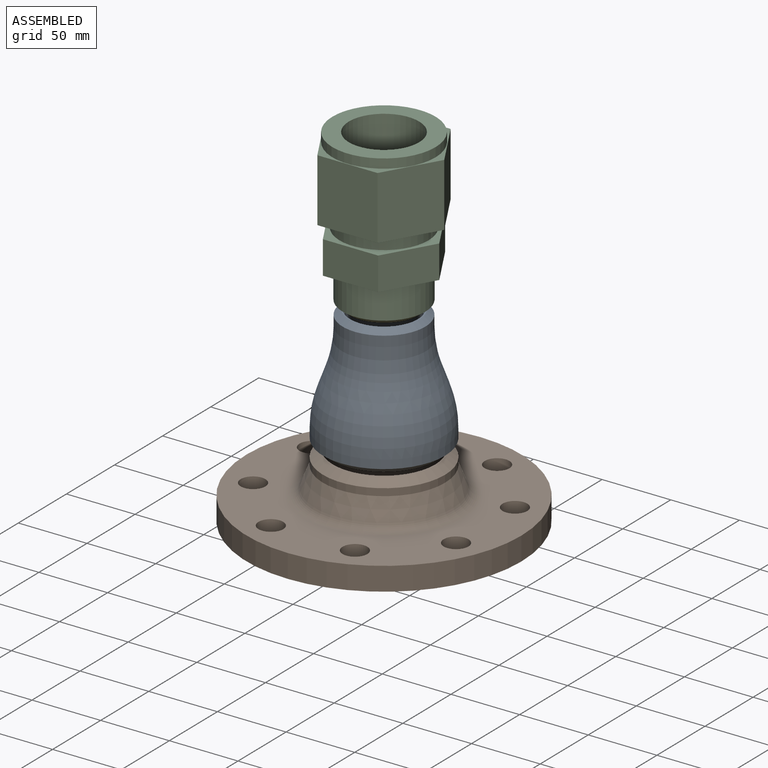
[diagram: assembled view]
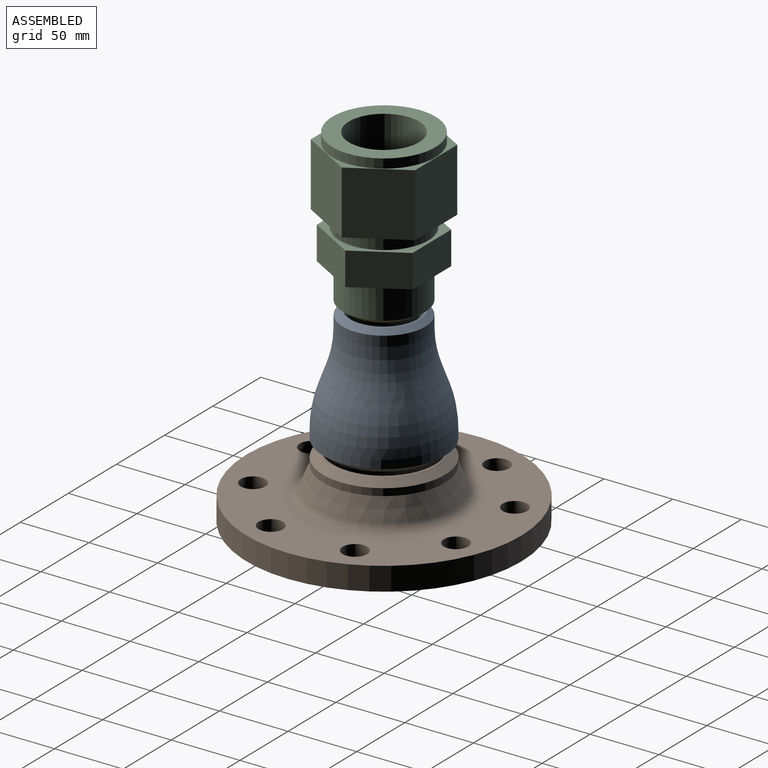
[diagram: assembled view, second angle]
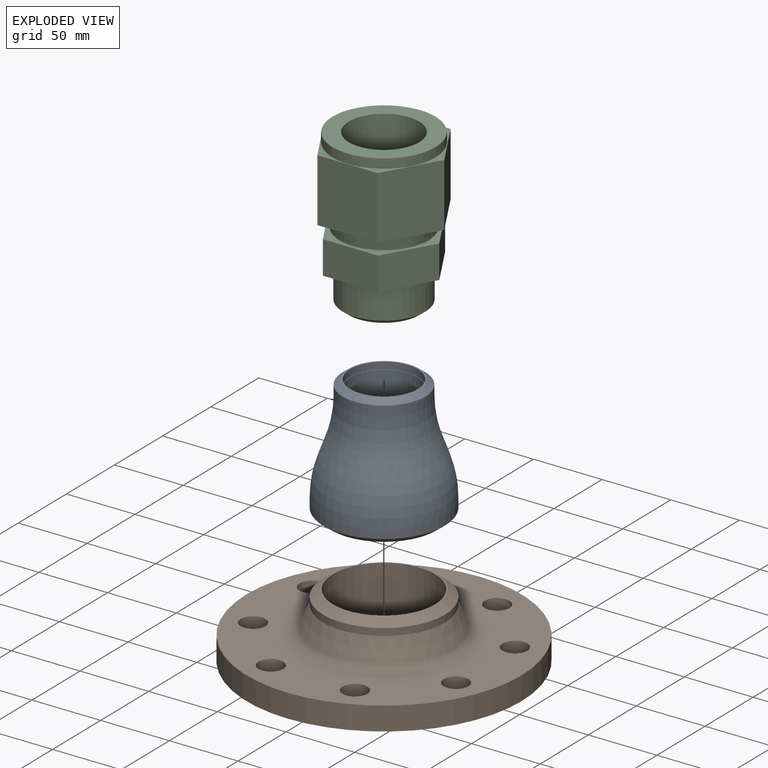
[diagram: exploded view]
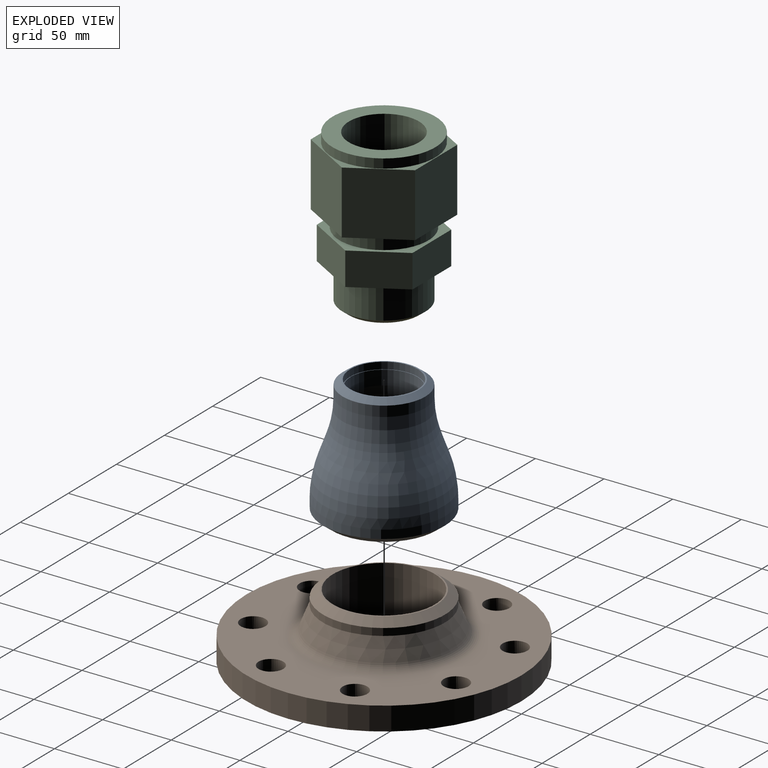
[diagram: exploded view, second angle]
ASSEMBLY  parts=3 mates=2
PART A: 19 faces, bbox 130.6x115.4x115.4 mm
  f0: cylinder r=44.4mm len=88.8mm, axis (-1,0,0), area 1711.9mm2, adj f3,f14
  f1: cone r=44.4mm half-angle=20deg, axis (1,0,0), area 3182.6mm2, adj f14,f15
  f2: cylinder r=30.1mm len=60.2mm, axis (-1,0,0), area 1413mm2, adj f4,f15
  f3: cone r=44.4mm half-angle=52.5deg, axis (-1,0,0), area 2027.9mm2, adj f0,f5
  f4: cone r=25.62mm half-angle=52.5deg, axis (1,0,0), area 987.5mm2, adj f2,f13
  f5: plane 76.4x76.4mm, normal (1,0,0), area 236.9mm2, adj f3,f6
  f6: cylinder r=37.2mm len=74.4mm, axis (1,0,0), area 1168.7mm2, adj f5,f7
  f7: plane 74.4x74.4mm, normal (1,0,0), area 139.1mm2, adj f6,f18
  f8: cylinder r=24.25mm len=48.5mm, axis (-1,0,0), area 1602.6mm2, adj f12,f16
  f9: cone r=36.1mm half-angle=20deg, axis (1,0,0), area 1220mm2, adj f16,f17
  f10: cylinder r=36.1mm len=72.2mm, axis (-1,0,0), area 1703.9mm2, adj f17,f18
  f11: cylinder r=24.62mm len=49.25mm, axis (1,0,0), area 773.6mm2, adj f12,f13
  f12: plane 49.25x49.25mm, normal (-1,0,0), area 57.6mm2, adj f8,f11
  f13: plane 51.25x51.25mm, normal (-1,0,0), area 157.9mm2, adj f4,f11
  f14: revolved ~88.8x88.8mm, area 7507.1mm2, adj f0,f1
  f15: torus R=110.1mm, axis (-1,0,0), area 5564.7mm2, adj f1,f2
  f16: torus R=104.25mm, axis (1,0,0), area 4538.2mm2, adj f8,f9
  f17: revolved ~72.2x72.2mm, area 6050.8mm2, adj f9,f10
  f18: cone r=36.1mm half-angle=45deg, axis (1,0,0), area 161.5mm2, adj f7,f10
PART B: 20 faces, bbox 200x200x50 mm
  f0: plane 76.4x76.4mm, normal (0,0,1), area 236.9mm2, adj f1,f17
  f1: cylinder r=37.2mm len=74.4mm, axis (0,0,1), area 11686.7mm2, adj f0,f2
  f2: plane 138x138mm, normal (0,0,-1), area 10609.7mm2, adj f1,f3
  f3: cylinder r=69mm len=138mm, axis (0,0,1), area 1300.6mm2, adj f2,f4
  f4: plane 200x200mm, normal (0,0,-1), area 14423.1mm2, adj f3,f5,f9,f10,f11,f12,f13,f14
  f5: cylinder r=100mm len=200mm, axis (0,0,1), area 10681.4mm2, adj f4,f6
  f6: plane 200x200mm, normal (0,0,1), area 18846.9mm2, adj f5,f9,f10,f11,f12,f13,f14,f15
  f7: cone r=52.5mm half-angle=21.9deg, axis (0,0,-1), area 4818.2mm2, adj f8,f19
  f8: cylinder r=44.45mm len=88.9mm, axis (0,0,1), area 1453.2mm2, adj f7,f18
  f9: cylinder r=9mm len=18mm, axis (0,0,1), area 961.3mm2, adj f4,f6
  f10: cylinder r=9mm len=18mm, axis (0,0,1), area 961.3mm2, adj f4,f6
  f11: cylinder r=9mm len=18mm, axis (0,0,1), area 961.3mm2, adj f4,f6
  f12: cylinder r=9mm len=18mm, axis (0,0,1), area 961.3mm2, adj f4,f6
  f13: cylinder r=9mm len=18mm, axis (0,0,1), area 961.3mm2, adj f4,f6
  f14: cylinder r=9mm len=18mm, axis (0,0,1), area 961.3mm2, adj f4,f6
  f15: cylinder r=9mm len=18mm, axis (0,0,1), area 961.3mm2, adj f4,f6
  f16: cylinder r=9mm len=18mm, axis (0,0,1), area 961.3mm2, adj f4,f6
  f17: cylinder r=38.2mm len=76.4mm, axis (0,0,-1), area 0.2mm2, adj f0,f18
  f18: cone r=38.2mm half-angle=52.5deg, axis (0,0,-1), area 2045.5mm2, adj f8,f17
  f19: torus R=57.9mm, axis (0,0,-1), area 3206.2mm2, adj f6,f7
PART C: 27 faces, bbox 87.8x76x113.7 mm
  f0: plane 75.1x75.1mm, normal (0,0,1), area 2370.8mm2, adj f1,f14
  f1: cylinder r=25.6mm len=67.5mm, axis (0,0,-1), area 10857.3mm2, adj f0,f2
  f2: plane 51.2x51.2mm, normal (0,0,1), area 323.9mm2, adj f1,f3
  f3: cylinder r=23.5mm len=47mm, axis (0,0,-1), area 2524.9mm2, adj f2,f4
  f4: plane 49.25x49.25mm, normal (0,0,-1), area 170.1mm2, adj f3,f5
  f5: cylinder r=24.62mm len=49.25mm, axis (0,0,-1), area 4502.5mm2, adj f4,f6
  f6: plane 51.25x51.25mm, normal (0,0,-1), area 157.9mm2, adj f5,f7
  f7: cone r=25.62mm half-angle=52.5deg, axis (0,0,1), area 1005.4mm2, adj f6,f8
  f8: cylinder r=30.18mm len=60.35mm, axis (0,0,-1), area 4457.1mm2, adj f7,f9
  f9: plane 80.48x69.7mm, normal (0,0,-1), area 1346.7mm2, adj f8,f21,f22,f23,f24,f25,f26
  f10: plane 80.48x69.7mm, normal (0,0,1), area 909.3mm2, adj f11,f21,f22,f23,f24,f25,f26
  f11: cylinder r=32.4mm len=64.8mm, axis (0,0,-1), area 2035.8mm2, adj f10,f12
  f12: plane 87.76x76mm, normal (0,0,-1), area 1704.2mm2, adj f11,f15,f16,f17,f18,f19,f20
  f13: plane 87.76x76mm, normal (0,0,1), area 572.5mm2, adj f14,f15,f16,f17,f18,f19,f20
  f14: cylinder r=37.55mm len=75.1mm, axis (0,0,-1), area 1580.8mm2, adj f0,f13
  f15: plane 46x43.88mm, normal (0,1,0), area 2018.4mm2, adj f12,f13,f16,f20
  f16: plane 46x38mm, normal (0.87,0.5,0), area 2018.4mm2, adj f12,f13,f15,f17
  f17: plane 46x38mm, normal (0.87,-0.5,0), area 2018.4mm2, adj f12,f13,f16,f18
  f18: plane 46x43.88mm, normal (0,-1,0), area 2018.4mm2, adj f12,f13,f17,f19
  f19: plane 46x38mm, normal (-0.87,-0.5,0), area 2018.4mm2, adj f12,f13,f18,f20
  f20: plane 46x38mm, normal (-0.87,0.5,0), area 2018.4mm2, adj f12,f13,f15,f19
  f21: plane 34.85x24mm, normal (0.87,0.5,0), area 965.8mm2, adj f9,f10,f22,f26
  f22: plane 34.85x24mm, normal (0.87,-0.5,0), area 965.8mm2, adj f9,f10,f21,f23
  f23: plane 40.24x24mm, normal (0,-1,0), area 965.8mm2, adj f9,f10,f22,f24
  f24: plane 34.85x24mm, normal (-0.87,-0.5,0), area 965.8mm2, adj f9,f10,f23,f25
  f25: plane 34.85x24mm, normal (-0.87,0.5,0), area 965.8mm2, adj f9,f10,f24,f26
  f26: plane 40.24x24mm, normal (0,1,0), area 965.8mm2, adj f9,f10,f21,f25
PLACE A rot(axis=(0.58,0.58,-0.58),120deg) t=(0.92,0.53,117.3)mm
PLACE B t=(0.92,0.53,-25)mm fixed
PLACE C t=(0.92,0.53,120.3)mm
MATE fastened C.f1 <-> A.f0  axis (0,0,1) through (0.92,0.53,120.3)mm
MATE fastened A.f0 <-> B.f1  axis (0,0,1) through (0.92,0.53,28)mm
